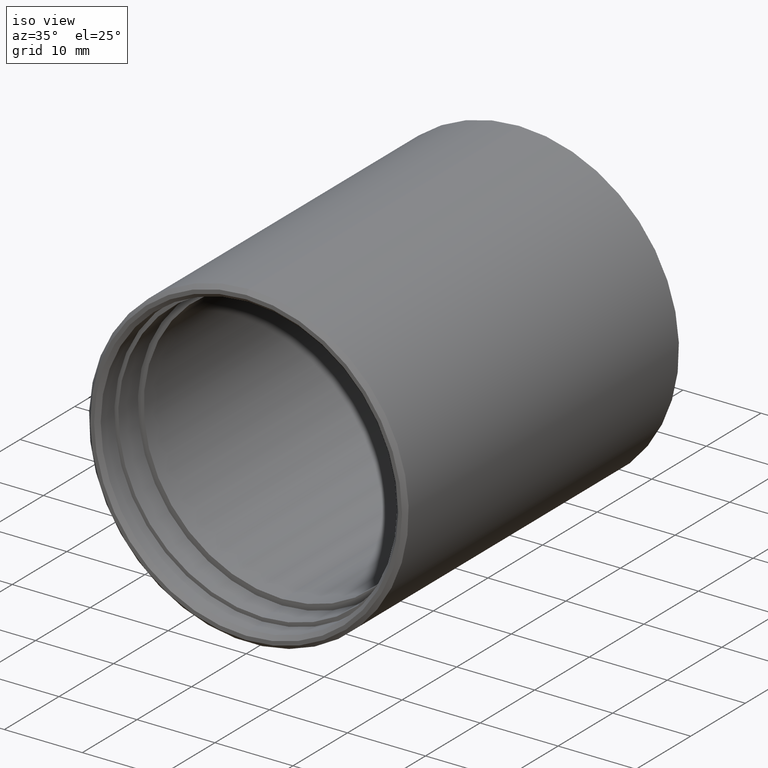
[diagram: clean part render]
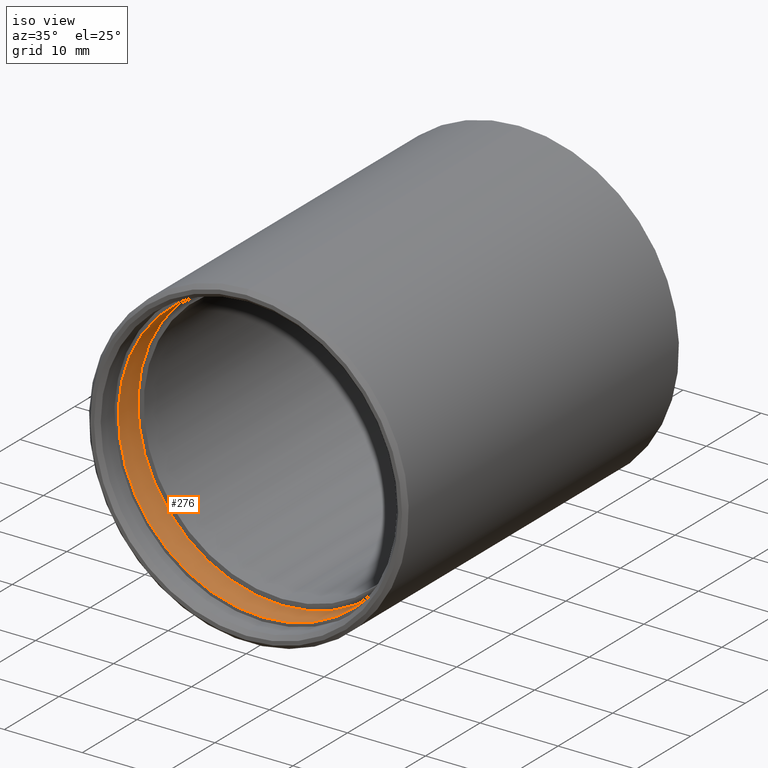
[diagram: same view with one face highlighted and labeled with its STEP entity id]
A machine part, iso view. The second image highlights one B-rep face of the part: STEP entity #276.
In plain terms, the highlighted cylindrical surface (bore or boss wall) has radius 18.5 mm, axis along (-0, -1, -0).
Its self-contained STEP definition (entity closure, byte-faithful):
#6 = EDGE_CURVE ( 'NONE', #265, #265, #223, .T. ) ;
#30 = CIRCLE ( 'NONE', #264, 18.50000000000000000 ) ;
#32 = CARTESIAN_POINT ( 'NONE',  ( 0.000000000000000000, 3.000000000000000000, 0.000000000000000000 ) ) ;
#39 = DIRECTION ( 'NONE',  ( 0.000000000000000000, 0.000000000000000000, -1.000000000000000000 ) ) ;
#46 = ORIENTED_EDGE ( 'NONE', *, *, #6, .T. ) ;
#89 = CARTESIAN_POINT ( 'NONE',  ( 0.000000000000000000, 6.580000000000000959, 0.000000000000000000 ) ) ;
#94 = EDGE_CURVE ( 'NONE', #274, #274, #30, .T. ) ;
#114 = AXIS2_PLACEMENT_3D ( 'NONE', #32, #197, #337 ) ;
#136 = ORIENTED_EDGE ( 'NONE', *, *, #94, .F. ) ;
#152 = FACE_OUTER_BOUND ( 'NONE', #184, .T. ) ;
#159 = CARTESIAN_POINT ( 'NONE',  ( 0.000000000000000000, 3.000000000000000000, -18.50000000000000000 ) ) ;
#173 = DIRECTION ( 'NONE',  ( -0.000000000000000000, -1.000000000000000000, -0.000000000000000000 ) ) ;
#184 = EDGE_LOOP ( 'NONE', ( #46 ) ) ;
#197 = DIRECTION ( 'NONE',  ( 0.000000000000000000, -1.000000000000000000, 0.000000000000000000 ) ) ;
#223 = CIRCLE ( 'NONE', #114, 18.50000000000000000 ) ;
#225 = AXIS2_PLACEMENT_3D ( 'NONE', #320, #173, #39 ) ;
#232 = FACE_OUTER_BOUND ( 'NONE', #249, .T. ) ;
#235 = CYLINDRICAL_SURFACE ( 'NONE', #225, 18.50000000000000000 ) ;
#249 = EDGE_LOOP ( 'NONE', ( #136 ) ) ;
#264 = AXIS2_PLACEMENT_3D ( 'NONE', #89, #284, #367 ) ;
#265 = VERTEX_POINT ( 'NONE', #159 ) ;
#271 = CARTESIAN_POINT ( 'NONE',  ( 0.000000000000000000, 6.580000000000000959, -18.50000000000000000 ) ) ;
#274 = VERTEX_POINT ( 'NONE', #271 ) ;
#276 = ADVANCED_FACE ( 'NONE', ( #232, #152 ), #235, .F. ) ;
#284 = DIRECTION ( 'NONE',  ( 0.000000000000000000, -1.000000000000000000, 0.000000000000000000 ) ) ;
#320 = CARTESIAN_POINT ( 'NONE',  ( 0.000000000000000000, 6.580000000000000959, 0.000000000000000000 ) ) ;
#337 = DIRECTION ( 'NONE',  ( 0.000000000000000000, 0.000000000000000000, -1.000000000000000000 ) ) ;
#367 = DIRECTION ( 'NONE',  ( 0.000000000000000000, 0.000000000000000000, -1.000000000000000000 ) ) ;